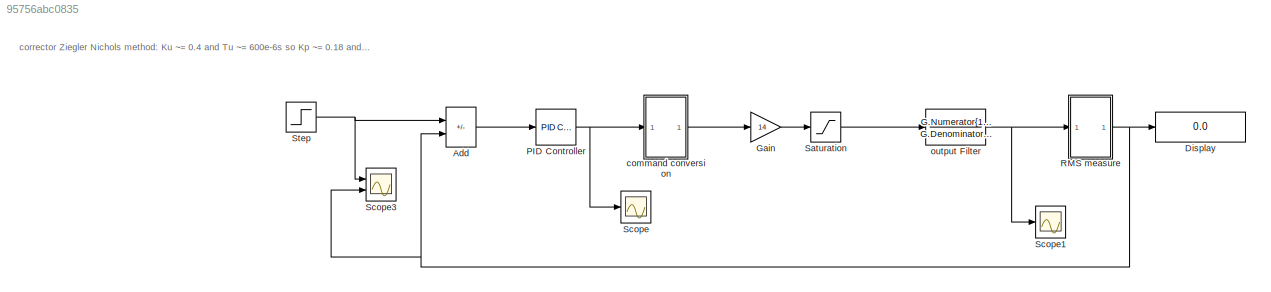
MODEL slx_95756abc0835
KIND model
CONFIG AbsTol = auto
CONFIG EnableMultiTasking = off
CONFIG FixedStep = auto
CONFIG MaxStep = auto
CONFIG MinStep = auto
CONFIG RelTol = 1e-3
CONFIG SampleTimeConstraint = Unconstrained
CONFIG SolverName = VariableStepAuto
CONFIG StartTime = 0.0
CONFIG StopTime = 0.1
BLOCK [Sum] Add
  IconShape = rectangular
  Inputs = +-
  Ports = [2, 1]
BLOCK [Display] Display
  Decimation = 1
  Ports = [1]
BLOCK [Gain] Gain
  Gain = 14
BLOCK [Reference] PID Controller  REF=pid_lib/PID Controller
  Ports = [1, 1]
  SourceBlock = pid_lib/PID Controller
  SourceProductBaseCode = SL
  SourceType = PID 1dof
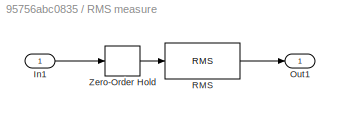
BLOCK [SubSystem] RMS measure
  Ports = [1, 1]
  RequestExecContextInheritance = off
BLOCK [Inport] RMS measure/In1
BLOCK [Outport] RMS measure/Out1
BLOCK [Reference] RMS measure/RMS  REF=dspstat3/RMS
  Ports = [1, 1]
  SourceBlock = dspstat3/RMS
  SourceProductBaseCode = DS
  SourceType = RMS
  UserDataPersistent = on
BLOCK [ZeroOrderHold] RMS measure/Zero-Order Hold
  SampleTime = 0.000001
BLOCK [Saturate] Saturation
  LowerLimit = 0
  UpperLimit = 14
BLOCK [Scope] Scope
  Floating = off
  NumInputPorts = 1
  Ports = [1]
  ScopeSpecificationString = Simulink.scopes.TimeScopeBlockCfg('CurrentConfiguration', extmgr.ConfigurationSet(extmgr.Configuration('Core','General UI',true),extmgr.Configuration('Core','Source UI',true),extmgr.Configuration('Sources','WiredSimulink',true,'DataLoggingVariableName','ScopeData1'),extmgr.Configuration('Visuals','Time Domain',true,'SerializedDisplays',{struct('MinYLimReal','-0.0127','MaxYLimReal','0.00243','YLabe...<+1430ch>
BLOCK [Scope] Scope1
  Floating = off
  NumInputPorts = 1
  Ports = [1]
  ScopeSpecificationString = Simulink.scopes.TimeScopeBlockCfg('CurrentConfiguration', extmgr.ConfigurationSet(extmgr.Configuration('Core','General UI',true),extmgr.Configuration('Core','Source UI',true),extmgr.Configuration('Sources','WiredSimulink',true,'DataLoggingVariableName','ScopeData3'),extmgr.Configuration('Visuals','Time Domain',true,'SerializedDisplays',{struct('MinYLimReal','-1.76834','MaxYLimReal','1.24179','YLab...<+1790ch>
BLOCK [Scope] Scope3
  Floating = off
  NumInputPorts = 2
  Ports = [2]
  ScopeSpecificationString = Simulink.scopes.TimeScopeBlockCfg('CurrentConfiguration', extmgr.ConfigurationSet(extmgr.Configuration('Core','General UI',true),extmgr.Configuration('Core','Source UI',true),extmgr.Configuration('Sources','WiredSimulink',true,'DataLoggingVariableName','ScopeData7'),extmgr.Configuration('Visuals','Time Domain',true,'SerializedDisplays',{struct('MinYLimReal','-1.0794','MaxYLimReal','9.71464','YLabe...<+1830ch>
BLOCK [Step] Step
  After = 2
  SampleTime = 0
  Time = 0.003
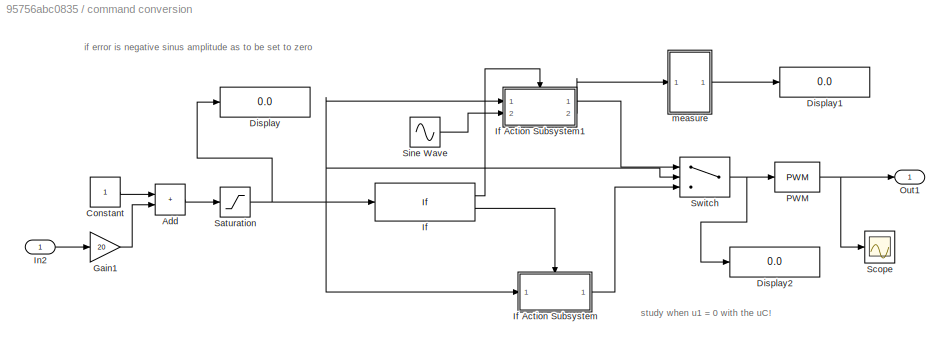
BLOCK [SubSystem] command conversion 
  Ports = [1, 1]
  RequestExecContextInheritance = off
BLOCK [Sum] command conversion /Add
  IconShape = rectangular
  Ports = [2, 1]
BLOCK [Constant] command conversion /Constant
BLOCK [Display] command conversion /Display
  Decimation = 1
  Ports = [1]
BLOCK [Display] command conversion /Display1
  Decimation = 1
  Ports = [1]
BLOCK [Display] command conversion /Display2
  Decimation = 1
  Ports = [1]
BLOCK [Gain] command conversion /Gain1
  Gain = 20
BLOCK [If] command conversion /If
  Ports = [1, 2]
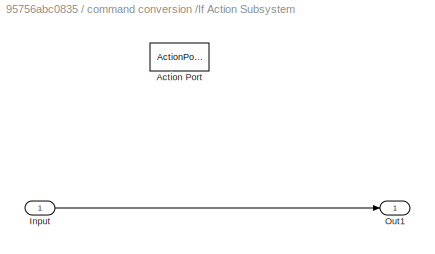
BLOCK [SubSystem] command conversion /If Action Subsystem
  Ports = [1, 1, 0, 0, 0, 0, 0, 1]
  RequestExecContextInheritance = off
  TreatAsAtomicUnit = on
BLOCK [ActionPort] command conversion /If Action Subsystem/Action Port
  ActionPortLabel = else
BLOCK [Inport] command conversion /If Action Subsystem/Input
BLOCK [Outport] command conversion /If Action Subsystem/Out1
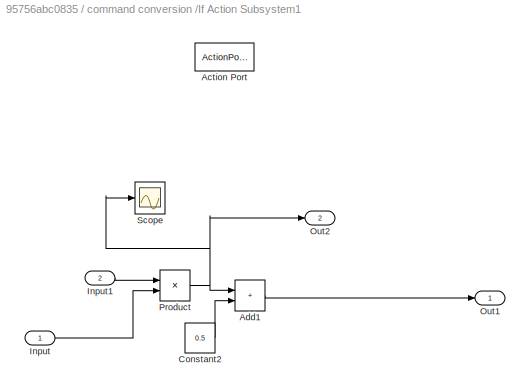
BLOCK [SubSystem] command conversion /If Action Subsystem1
  Ports = [2, 2, 0, 0, 0, 0, 0, 1]
  RequestExecContextInheritance = off
  TreatAsAtomicUnit = on
BLOCK [ActionPort] command conversion /If Action Subsystem1/Action Port
  ActionPortLabel = if(u1 > 0)
BLOCK [Sum] command conversion /If Action Subsystem1/Add1
  IconShape = rectangular
  Ports = [2, 1]
BLOCK [Constant] command conversion /If Action Subsystem1/Constant2
  Value = 0.5
BLOCK [Inport] command conversion /If Action Subsystem1/Input
BLOCK [Inport] command conversion /If Action Subsystem1/Input1
  Port = 2
BLOCK [Outport] command conversion /If Action Subsystem1/Out1
BLOCK [Outport] command conversion /If Action Subsystem1/Out2
  Port = 2
BLOCK [Product] command conversion /If Action Subsystem1/Product
  Ports = [2, 1]
BLOCK [Scope] command conversion /If Action Subsystem1/Scope
  Floating = off
  NumInputPorts = 1
  Ports = [1]
  ScopeSpecificationString = Simulink.scopes.TimeScopeBlockCfg('CurrentConfiguration', extmgr.ConfigurationSet(extmgr.Configuration('Core','General UI',true),extmgr.Configuration('Core','Source UI',true),extmgr.Configuration('Sources','WiredSimulink',true,'DataLoggingVariableName','ScopeData1'),extmgr.Configuration('Visuals','Time Domain',true,'SerializedDisplays',{struct('MinYLimReal','-0.37276','MaxYLimReal','0.37253','YLab...<+1385ch>
BLOCK [Inport] command conversion /In2
BLOCK [Outport] command conversion /Out1
BLOCK [Reference] command conversion /PWM  REF=simulink/Discontinuities/PWM
  DisableCoverage = on
  Ports = [1, 1]
  SourceBlock = simulink/Discontinuities/PWM
  SourceProductBaseCode = SL
  SourceType = PWM
BLOCK [Saturate] command conversion /Saturation
  LowerLimit = 0
  UpperLimit = 50
BLOCK [Scope] command conversion /Scope
  Floating = off
  NumInputPorts = 1
  Ports = [1]
  ScopeSpecificationString = Simulink.scopes.TimeScopeBlockCfg('CurrentConfiguration', extmgr.ConfigurationSet(extmgr.Configuration('Core','General UI',true),extmgr.Configuration('Core','Source UI',true),extmgr.Configuration('Sources','WiredSimulink',true,'DataLoggingVariableName','ScopeData2'),extmgr.Configuration('Visuals','Time Domain',true,'SerializedDisplays',{struct('MinYLimReal','-0.03383','MaxYLimReal','1.05114','YLab...<+1425ch>
BLOCK [Sin] command conversion /Sine Wave
  Amplitude = 0.4
  Frequency = 18850
  Ports = [0, 1]
  SampleTime = 0
BLOCK [Switch] command conversion /Switch
  Criteria = u2 > Threshold
  InputSameDT = off
  SaturateOnIntegerOverflow = off
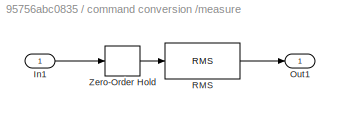
BLOCK [SubSystem] command conversion /measure
  Ports = [1, 1]
  RequestExecContextInheritance = off
BLOCK [Inport] command conversion /measure/In1
BLOCK [Outport] command conversion /measure/Out1
BLOCK [Reference] command conversion /measure/RMS  REF=dspstat3/RMS
  Ports = [1, 1]
  SourceBlock = dspstat3/RMS
  SourceProductBaseCode = DS
  SourceType = RMS
  UserDataPersistent = on
BLOCK [ZeroOrderHold] command conversion /measure/Zero-Order Hold
  SampleTime = 0.000001
BLOCK [TransferFcn] output Filter
  Denominator = G.Denominator{1,1}
  Numerator = G.Numerator{1,1}
ANNOTATION (root): corrector Ziegler Nichols method: Ku ~= 0.4 and Tu ~= 600e-6s so Kp ~= 0.18 and Ki ~= 360
ANNOTATION command conversion : if error is negative sinus amplitude as to be set to zero
ANNOTATION command conversion : study when u1 = 0 with the uC!
LINE Add:1 -> PID Controller:1
LINE Gain:1 -> Saturation:1
NET PID Controller:1 -> Scope:1, command conversion :1
LINE RMS measure/In1:1 -> RMS measure/Zero-Order Hold:1
LINE RMS measure/RMS:1 -> RMS measure/Out1:1
LINE RMS measure/Zero-Order Hold:1 -> RMS measure/RMS:1
NET RMS measure:1 -> Add:2, Display:1, Scope3:2
LINE Saturation:1 -> output Filter:1
NET Step:1 -> Add:1, Scope3:1
LINE command conversion /Add:1 -> command conversion /Saturation:1
LINE command conversion /Constant:1 -> command conversion /Add:1
LINE command conversion /Gain1:1 -> command conversion /Add:2
LINE command conversion /If Action Subsystem/Input:1 -> command conversion /If Action Subsystem/Out1:1
LINE command conversion /If Action Subsystem1/Add1:1 -> command conversion /If Action Subsystem1/Out1:1
LINE command conversion /If Action Subsystem1/Constant2:1 -> command conversion /If Action Subsystem1/Add1:2
LINE command conversion /If Action Subsystem1/Input1:1 -> command conversion /If Action Subsystem1/Product:1
LINE command conversion /If Action Subsystem1/Input:1 -> command conversion /If Action Subsystem1/Product:2
NET command conversion /If Action Subsystem1/Product:1 -> command conversion /If Action Subsystem1/Add1:1, command conversion /If Action Subsystem1/Out2:1, command conversion /If Action Subsystem1/Scope:1
LINE command conversion /If Action Subsystem1:1 -> command conversion /Switch:1
LINE command conversion /If Action Subsystem1:2 -> command conversion /measure:1
LINE command conversion /If Action Subsystem:1 -> command conversion /Switch:3
LINE command conversion /If:1 -> command conversion /If Action Subsystem1:ifaction
LINE command conversion /If:2 -> command conversion /If Action Subsystem:ifaction
LINE command conversion /In2:1 -> command conversion /Gain1:1
NET command conversion /PWM:1 -> command conversion /Out1:1, command conversion /Scope:1
NET command conversion /Saturation:1 -> command conversion /Display:1, command conversion /If Action Subsystem1:1, command conversion /If Action Subsystem:1, command conversion /If:1, command conversion /Switch:2
LINE command conversion /Sine Wave:1 -> command conversion /If Action Subsystem1:2
NET command conversion /Switch:1 -> command conversion /Display2:1, command conversion /PWM:1
LINE command conversion /measure/In1:1 -> command conversion /measure/Zero-Order Hold:1
LINE command conversion /measure/RMS:1 -> command conversion /measure/Out1:1
LINE command conversion /measure/Zero-Order Hold:1 -> command conversion /measure/RMS:1
LINE command conversion /measure:1 -> command conversion /Display1:1
LINE command conversion :1 -> Gain:1
NET output Filter:1 -> RMS measure:1, Scope1:1
note: NET lines group one-source signal fan-out (src -> all destinations, sorted); 1:1 wires keep LINE
